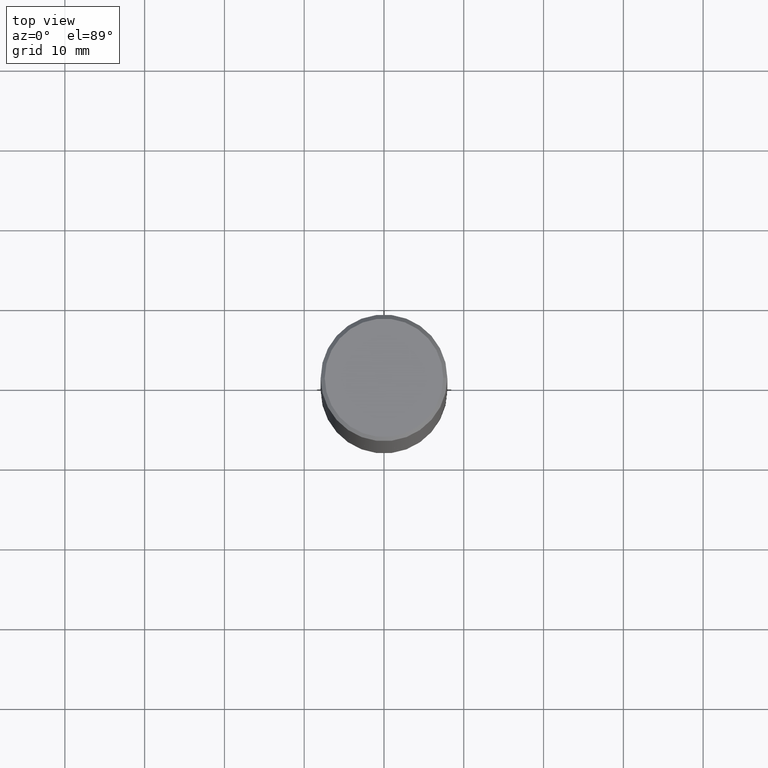
[diagram: clean part render]
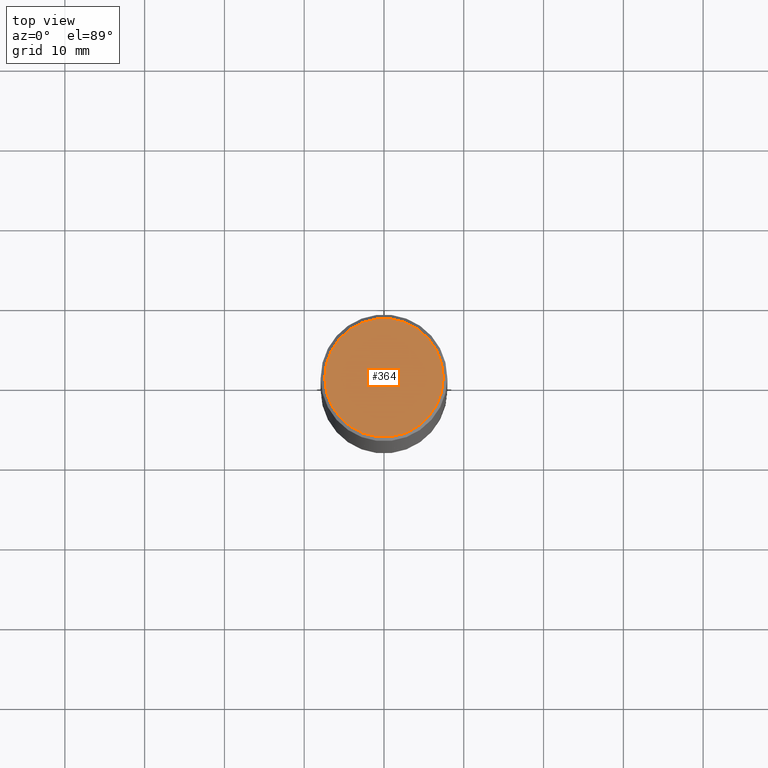
[diagram: same view with one face highlighted and labeled with its STEP entity id]
A machine part, top view. The second image highlights one B-rep face of the part: STEP entity #364.
In plain terms, the highlighted planar face has unit normal (0, -0, -1).
Its self-contained STEP definition (entity closure, byte-faithful):
#18 = CARTESIAN_POINT ( 'NONE',  ( -0.2924999999999998157, 2.077431396611662611E-15, 4.268512490086005323E-18 ) ) ;
#48 = EDGE_LOOP ( 'NONE', ( #426, #440 ) ) ;
#53 = CIRCLE ( 'NONE', #424, 0.2924999999999998157 ) ;
#93 = DIRECTION ( 'NONE',  ( -1.000000000000000000, 6.982962677686265922E-15, -4.876176775795935793E-29 ) ) ;
#105 = AXIS2_PLACEMENT_3D ( 'NONE', #158, #132, #93 ) ;
#110 = VERTEX_POINT ( 'NONE', #18 ) ;
#115 = VERTEX_POINT ( 'NONE', #154 ) ;
#132 = DIRECTION ( 'NONE',  ( 2.438088387897960049E-29, -3.491481338843145188E-15, -1.000000000000000000 ) ) ;
#154 = CARTESIAN_POINT ( 'NONE',  ( 0.2924999999999998157, -2.110215457714318748E-15, 4.268512490114932791E-18 ) ) ;
#155 = CARTESIAN_POINT ( 'NONE',  ( -1.043851414335219820E-46, 1.490343170380447200E-32, 4.268512490100411279E-18 ) ) ;
#158 = CARTESIAN_POINT ( 'NONE',  ( 2.042516583223231356E-15, 0.2924999999999998157, -1.019124035366569212E-15 ) ) ;
#175 = EDGE_CURVE ( 'NONE', #110, #115, #345, .T. ) ;
#227 = FACE_OUTER_BOUND ( 'NONE', #48, .T. ) ;
#300 = DIRECTION ( 'NONE',  ( -2.445468806185136597E-29, 3.491481338843145583E-15, 1.000000000000000000 ) ) ;
#308 = CARTESIAN_POINT ( 'NONE',  ( -1.043851414335219820E-46, 1.490343170380447200E-32, 4.268512490100411279E-18 ) ) ;
#325 = EDGE_CURVE ( 'NONE', #115, #110, #53, .T. ) ;
#337 = DIRECTION ( 'NONE',  ( -2.445468806185136597E-29, 3.491481338843145583E-15, 1.000000000000000000 ) ) ;
#339 = DIRECTION ( 'NONE',  ( 1.000000000000000000, -6.982962677686266711E-15, 4.876067333457692840E-29 ) ) ;
#345 = CIRCLE ( 'NONE', #388, 0.2924999999999998157 ) ;
#364 = ADVANCED_FACE ( 'NONE', ( #227 ), #409, .F. ) ;
#388 = AXIS2_PLACEMENT_3D ( 'NONE', #155, #300, #429 ) ;
#409 = PLANE ( 'NONE',  #105 ) ;
#424 = AXIS2_PLACEMENT_3D ( 'NONE', #308, #337, #339 ) ;
#426 = ORIENTED_EDGE ( 'NONE', *, *, #175, .T. ) ;
#429 = DIRECTION ( 'NONE',  ( 1.000000000000000000, -6.982962677686266711E-15, 4.876067333457692840E-29 ) ) ;
#440 = ORIENTED_EDGE ( 'NONE', *, *, #325, .T. ) ;